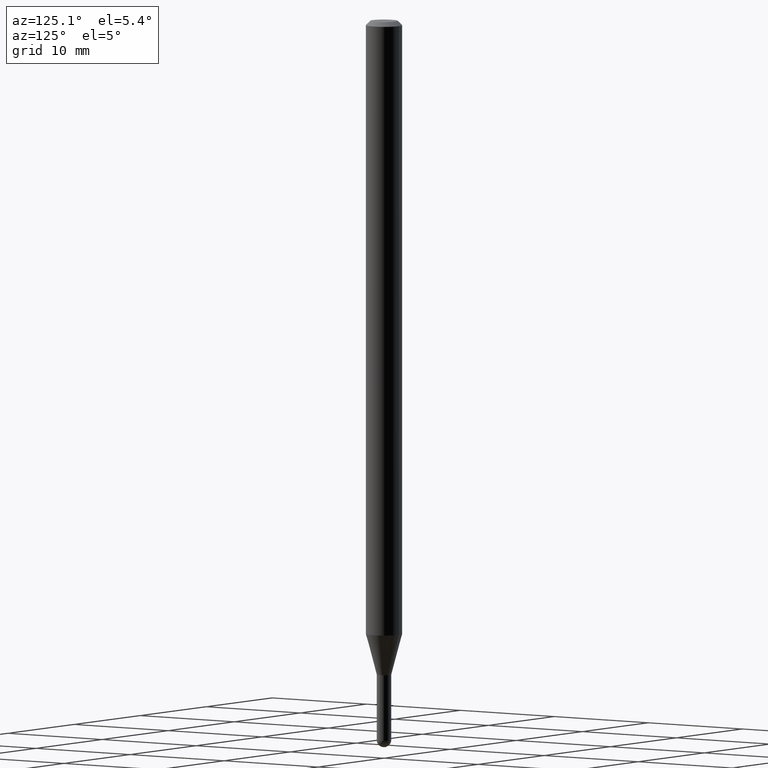
[diagram: clean part render]
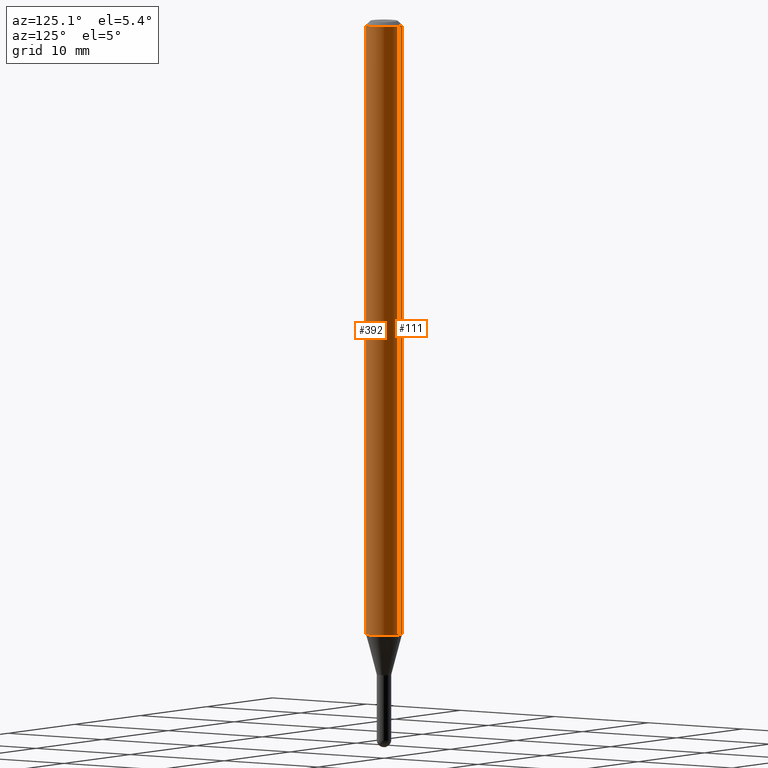
[diagram: same view with one multi-face feature highlighted, each face labeled with its STEP entity id]
A machine part, auxiliary view. The highlighted faces form ONE feature: a constant-radius fillet chain: 2 tangent blend faces with common blend radius 1.5875 mm. The faces share edges in the B-rep.
Their STEP definitions:
[1] entity #111 (Cylinder):
#31 = CARTESIAN_POINT ( 'NONE',  ( 4.440892098501139907E-16, 0.06249999999999261702, -2.110048094716172606 ) ) ;
#61 = EDGE_LOOP ( 'NONE', ( #247, #225, #180, #131 ) ) ;
#64 = DIRECTION ( 'NONE',  ( -2.445436179187043706E-29, 3.491528062561427920E-15, 1.000000000000000000 ) ) ;
#79 = CYLINDRICAL_SURFACE ( 'NONE', #271, 0.06250000000000000000 ) ;
#80 = VECTOR ( 'NONE', #64, 39.37007874015748143 ) ;
#84 = DIRECTION ( 'NONE',  ( -2.445436179187043706E-29, 3.491528062561427920E-15, 1.000000000000000000 ) ) ;
#87 = CARTESIAN_POINT ( 'NONE',  ( -4.364351673553916201E-16, -0.06250000000000000000, 2.182205039100892450E-16 ) ) ;
#88 = CARTESIAN_POINT ( 'NONE',  ( -4.364351673553401962E-16, -0.06250000000000738298, -2.110048094716172162 ) ) ;
#111 = ADVANCED_FACE ( 'NONE', ( #277 ), #79, .T. ) ;
#122 = DIRECTION ( 'NONE',  ( -2.445436179187043706E-29, 3.491528062561427920E-15, 1.000000000000000000 ) ) ;
#131 = ORIENTED_EDGE ( 'NONE', *, *, #403, .F. ) ;
#180 = ORIENTED_EDGE ( 'NONE', *, *, #201, .T. ) ;
#197 = CARTESIAN_POINT ( 'NONE',  ( 0.000000000000000000, 0.000000000000000000, 0.000000000000000000 ) ) ;
#201 = EDGE_CURVE ( 'NONE', #406, #293, #354, .T. ) ;
#212 = CARTESIAN_POINT ( 'NONE',  ( 5.159987950643618711E-29, -7.367292136055791182E-15, -2.110048094716172606 ) ) ;
#225 = ORIENTED_EDGE ( 'NONE', *, *, #350, .T. ) ;
#244 = DIRECTION ( 'NONE',  ( -6.982962677686265922E-15, -1.000000000000000000, 3.483106191921935554E-15 ) ) ;
#247 = ORIENTED_EDGE ( 'NONE', *, *, #434, .F. ) ;
#271 = AXIS2_PLACEMENT_3D ( 'NONE', #197, #84, #348 ) ;
#277 = FACE_OUTER_BOUND ( 'NONE', #61, .T. ) ;
#287 = AXIS2_PLACEMENT_3D ( 'NONE', #491, #373, #244 ) ;
#293 = VERTEX_POINT ( 'NONE', #322 ) ;
#313 = VECTOR ( 'NONE', #122, 39.37007874015748143 ) ;
#322 = CARTESIAN_POINT ( 'NONE',  ( -4.364351673553912750E-16, -0.06250000000000005551, -0.01499999999999984852 ) ) ;
#348 = DIRECTION ( 'NONE',  ( -6.982962677686265922E-15, -1.000000000000000000, 3.491528062561427920E-15 ) ) ;
#350 = EDGE_CURVE ( 'NONE', #472, #406, #372, .T. ) ;
#354 = LINE ( 'NONE', #87, #313 ) ;
#363 = DIRECTION ( 'NONE',  ( -6.982962677686265922E-15, -1.000000000000000000, 4.370956789862821150E-15 ) ) ;
#366 = CARTESIAN_POINT ( 'NONE',  ( 4.440892098501145824E-16, 0.06249999999999995143, -0.01500000000000028394 ) ) ;
#372 = CIRCLE ( 'NONE', #431, 0.06250000000000000000 ) ;
#373 = DIRECTION ( 'NONE',  ( -2.445436179187043706E-29, 3.491528062561427920E-15, 1.000000000000000000 ) ) ;
#382 = VERTEX_POINT ( 'NONE', #366 ) ;
#403 = EDGE_CURVE ( 'NONE', #382, #293, #509, .T. ) ;
#406 = VERTEX_POINT ( 'NONE', #88 ) ;
#408 = DIRECTION ( 'NONE',  ( -2.445436179187043706E-29, 3.491528062561427920E-15, 1.000000000000000000 ) ) ;
#419 = CARTESIAN_POINT ( 'NONE',  ( 4.440892098500625669E-16, 0.06250000000000000000, -2.182205039100892450E-16 ) ) ;
#431 = AXIS2_PLACEMENT_3D ( 'NONE', #212, #408, #363 ) ;
#434 = EDGE_CURVE ( 'NONE', #472, #382, #465, .T. ) ;
#465 = LINE ( 'NONE', #419, #80 ) ;
#472 = VERTEX_POINT ( 'NONE', #31 ) ;
#491 = CARTESIAN_POINT ( 'NONE',  ( 3.668154268780582042E-31, -5.237292093842164733E-17, -0.01500000000000006710 ) ) ;
#509 = CIRCLE ( 'NONE', #287, 0.06250000000000000000 ) ;
[2] entity #392 (Cylinder):
#18 = DIRECTION ( 'NONE',  ( -2.445436179187043706E-29, 3.491528062561427920E-15, 1.000000000000000000 ) ) ;
#31 = CARTESIAN_POINT ( 'NONE',  ( 4.440892098501139907E-16, 0.06249999999999261702, -2.110048094716172606 ) ) ;
#32 = ORIENTED_EDGE ( 'NONE', *, *, #201, .F. ) ;
#58 = ORIENTED_EDGE ( 'NONE', *, *, #467, .F. ) ;
#62 = DIRECTION ( 'NONE',  ( -6.982962677686265922E-15, -1.000000000000000000, 3.483106191921935554E-15 ) ) ;
#64 = DIRECTION ( 'NONE',  ( -2.445436179187043706E-29, 3.491528062561427920E-15, 1.000000000000000000 ) ) ;
#72 = AXIS2_PLACEMENT_3D ( 'NONE', #360, #18, #334 ) ;
#80 = VECTOR ( 'NONE', #64, 39.37007874015748143 ) ;
#82 = DIRECTION ( 'NONE',  ( -6.982962677686265922E-15, -1.000000000000000000, 4.370956789862821150E-15 ) ) ;
#87 = CARTESIAN_POINT ( 'NONE',  ( -4.364351673553916201E-16, -0.06250000000000000000, 2.182205039100892450E-16 ) ) ;
#88 = CARTESIAN_POINT ( 'NONE',  ( -4.364351673553401962E-16, -0.06250000000000738298, -2.110048094716172162 ) ) ;
#116 = EDGE_CURVE ( 'NONE', #406, #472, #219, .T. ) ;
#122 = DIRECTION ( 'NONE',  ( -2.445436179187043706E-29, 3.491528062561427920E-15, 1.000000000000000000 ) ) ;
#148 = DIRECTION ( 'NONE',  ( -2.445436179187043706E-29, 3.491528062561427920E-15, 1.000000000000000000 ) ) ;
#166 = AXIS2_PLACEMENT_3D ( 'NONE', #357, #194, #82 ) ;
#191 = CIRCLE ( 'NONE', #254, 0.06250000000000000000 ) ;
#194 = DIRECTION ( 'NONE',  ( -2.445436179187043706E-29, 3.491528062561427920E-15, 1.000000000000000000 ) ) ;
#201 = EDGE_CURVE ( 'NONE', #406, #293, #354, .T. ) ;
#204 = FACE_OUTER_BOUND ( 'NONE', #367, .T. ) ;
#219 = CIRCLE ( 'NONE', #166, 0.06250000000000000000 ) ;
#242 = ORIENTED_EDGE ( 'NONE', *, *, #116, .T. ) ;
#254 = AXIS2_PLACEMENT_3D ( 'NONE', #427, #148, #62 ) ;
#281 = ORIENTED_EDGE ( 'NONE', *, *, #434, .T. ) ;
#282 = CYLINDRICAL_SURFACE ( 'NONE', #72, 0.06250000000000000000 ) ;
#293 = VERTEX_POINT ( 'NONE', #322 ) ;
#313 = VECTOR ( 'NONE', #122, 39.37007874015748143 ) ;
#322 = CARTESIAN_POINT ( 'NONE',  ( -4.364351673553912750E-16, -0.06250000000000005551, -0.01499999999999984852 ) ) ;
#334 = DIRECTION ( 'NONE',  ( -6.982962677686265922E-15, -1.000000000000000000, 3.491528062561427920E-15 ) ) ;
#354 = LINE ( 'NONE', #87, #313 ) ;
#357 = CARTESIAN_POINT ( 'NONE',  ( 5.159987950643618711E-29, -7.367292136055791182E-15, -2.110048094716172606 ) ) ;
#360 = CARTESIAN_POINT ( 'NONE',  ( 0.000000000000000000, 0.000000000000000000, 0.000000000000000000 ) ) ;
#366 = CARTESIAN_POINT ( 'NONE',  ( 4.440892098501145824E-16, 0.06249999999999995143, -0.01500000000000028394 ) ) ;
#367 = EDGE_LOOP ( 'NONE', ( #242, #281, #58, #32 ) ) ;
#382 = VERTEX_POINT ( 'NONE', #366 ) ;
#392 = ADVANCED_FACE ( 'NONE', ( #204 ), #282, .T. ) ;
#406 = VERTEX_POINT ( 'NONE', #88 ) ;
#419 = CARTESIAN_POINT ( 'NONE',  ( 4.440892098500625669E-16, 0.06250000000000000000, -2.182205039100892450E-16 ) ) ;
#427 = CARTESIAN_POINT ( 'NONE',  ( 3.668154268780582042E-31, -5.237292093842164733E-17, -0.01500000000000006710 ) ) ;
#434 = EDGE_CURVE ( 'NONE', #472, #382, #465, .T. ) ;
#465 = LINE ( 'NONE', #419, #80 ) ;
#467 = EDGE_CURVE ( 'NONE', #293, #382, #191, .T. ) ;
#472 = VERTEX_POINT ( 'NONE', #31 ) ;